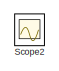
[diagram: root canvas - part 1/3, top left region]
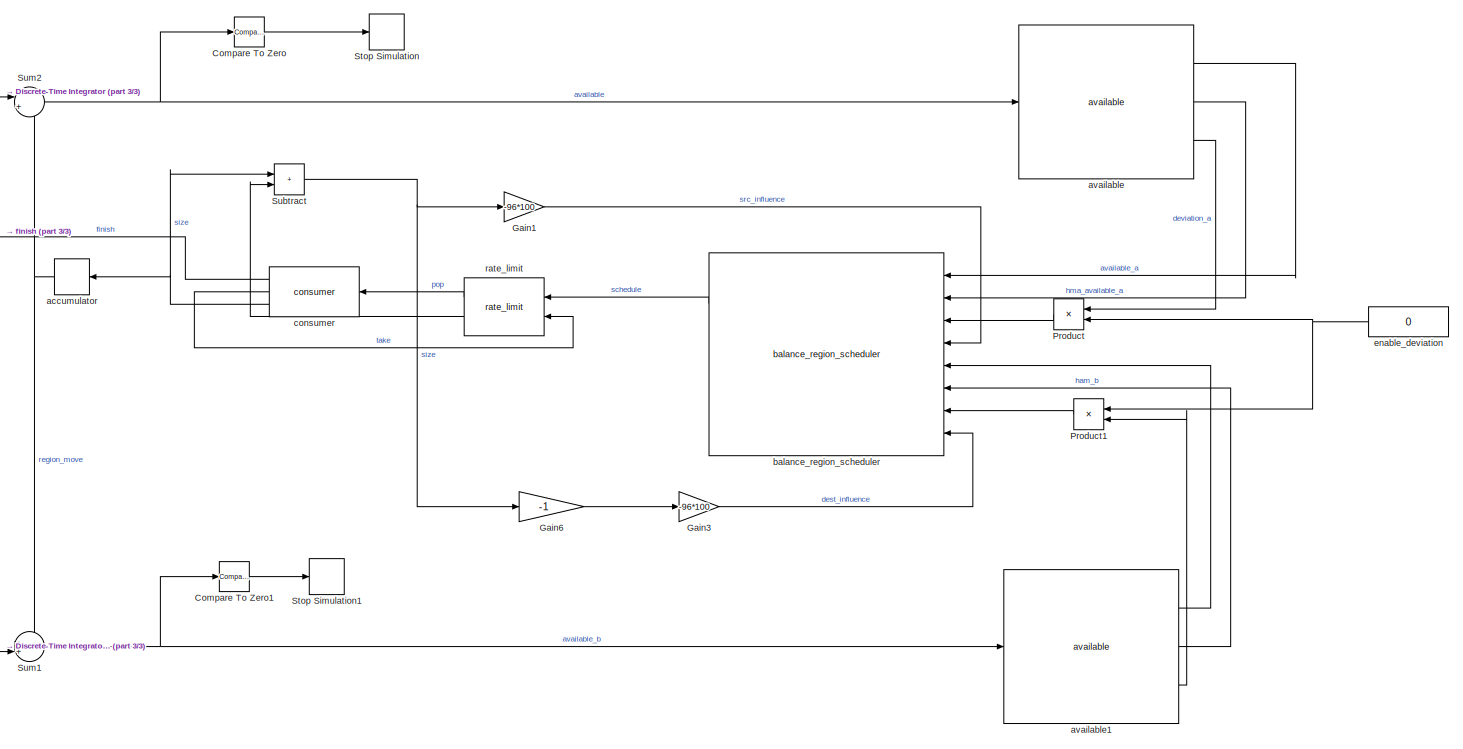
[diagram: root canvas - part 2/3, most of the canvas]
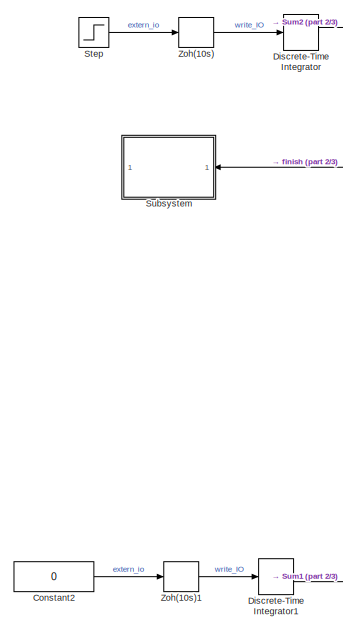
[diagram: root canvas - part 3/3, middle left region]
MODEL slx_dbddb1d050e6
KIND model
CONFIG AbsTol = auto
CONFIG EnableMultiTasking = off
CONFIG FixedStep = auto
CONFIG MaxStep = auto
CONFIG MinStep = auto
CONFIG RelTol = 1e-6
CONFIG SampleTimeConstraint = Unconstrained
CONFIG SolverName = FixedStepDiscrete
CONFIG StartTime = 0.0
CONFIG StopTime = 5000
WORKSPACE source: mxarray member
WORKSPACE Ts = 10
WORKSPACE a_amp = 1.1
WORKSPACE a_capacity = 100
WORKSPACE a_initial_available = 10
WORKSPACE b_amp = 1.1
WORKSPACE b_capacity = 100
WORKSPACE b_initial_available = 100
WORKSPACE consumer_size = 1000
WORKSPACE low_space_ratio = 0.8
WORKSPACE move = 0.004
WORKSPACE op_finish_duration = 60
WORKSPACE store_limit = 15
WORKSPACE write_qps = 0
BLOCK [Reference] Compare To Zero  REF=simulink/Logic and Bit
Operations/Compare
To Zero
  Ports = [1, 1]
  SourceBlock = simulink/Logic and Bit\nOperations/Compare\nTo Zero
  SourceProductBaseCode = SL
  SourceType = Compare To Zero
BLOCK [Reference] Compare To Zero1  REF=simulink/Logic and Bit
Operations/Compare
To Zero
  Ports = [1, 1]
  SourceBlock = simulink/Logic and Bit\nOperations/Compare\nTo Zero
  SourceProductBaseCode = SL
  SourceType = Compare To Zero
BLOCK [Constant] Constant2
  Value = 0
BLOCK [DiscreteIntegrator] Discrete-Time Integrator
  ICPrevOutput = DiscIntNeverNeededParam
  ICPrevScaledInput = DiscIntNeverNeededParam
  InitialCondition = a_initial_available
  InitialConditionSetting = Auto
  Ports = [1, 1]
  SampleTime = Ts
  gainval = 1
BLOCK [DiscreteIntegrator] Discrete-Time Integrator1
  ICPrevOutput = DiscIntNeverNeededParam
  ICPrevScaledInput = DiscIntNeverNeededParam
  InitialCondition = b_initial_available
  InitialConditionSetting = Auto
  Ports = [1, 1]
  SampleTime = Ts
  gainval = 1
BLOCK [Gain] Gain1
  Gain = -96*100
BLOCK [Gain] Gain3
  Gain = -96*100
BLOCK [Gain] Gain6
  Gain = -1
BLOCK [Product] Product
  NameLocation = top
  Ports = [2, 1]
BLOCK [Product] Product1
  NameLocation = top
  Ports = [2, 1]
BLOCK [Scope] Scope2
  Floating = off
  IOType = viewer
  NumInputPorts = 1
  Ports = []
  ScopeSpecificationString = Simulink.scopes.TimeScopeBlockCfg('CurrentConfiguration', extmgr.ConfigurationSet(extmgr.Configuration('Core','General UI',true),extmgr.Configuration('Core','Source UI',true),extmgr.Configuration('Sources','WiredSimulink',true,'DataLoggingVariableName','ScopeData2'),extmgr.Configuration('Visuals','Time Domain',true,'SerializedDisplays',{struct('MinYLimReal','-1.25','MaxYLimReal','1.25','YLabelReal...<+1371ch>
BLOCK [Step] Step
  After = write_qps
  SampleTime = 0
  Time = 40*60
BLOCK [Stop] Stop Simulation
BLOCK [Stop] Stop Simulation1
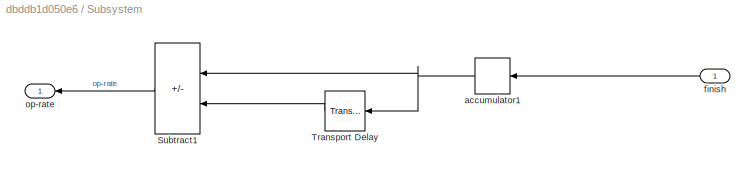
BLOCK [SubSystem] Subsystem
  NameLocation = top
  Ports = [1, 1]
  RequestExecContextInheritance = off
BLOCK [Sum] Subsystem/Subtract1
  IconShape = rectangular
  Inputs = +-
  NameLocation = top
  Ports = [2, 1]
BLOCK [TransportDelay] Subsystem/Transport Delay
  DelayTime = 60
  FixedBuffer = on
  NameLocation = top
  Ports = [1, 1]
BLOCK [DiscreteIntegrator] Subsystem/accumulator1
  ICPrevOutput = DiscIntNeverNeededParam
  ICPrevScaledInput = DiscIntNeverNeededParam
  InitialConditionSetting = Auto
  NameLocation = top
  Ports = [1, 1]
  SampleTime = -1
  gainval = Ts
BLOCK [Inport] Subsystem/finish
BLOCK [Outport] Subsystem/op-rate
BLOCK [Sum] Subtract
  IconShape = rectangular
  Ports = [2, 1]
BLOCK [Sum] Sum1
  Inputs = -+|
  Ports = [2, 1]
BLOCK [Sum] Sum2
  Inputs = |++
  Ports = [2, 1]
BLOCK [ZeroOrderHold] Zoh(10s)
  Description = Zoh(10s)
  SampleTime = Ts
BLOCK [ZeroOrderHold] Zoh(10s)1
  Description = Zoh(10s)
  SampleTime = Ts
BLOCK [DiscreteIntegrator] accumulator
  ICPrevOutput = DiscIntNeverNeededParam
  ICPrevScaledInput = DiscIntNeverNeededParam
  InitialConditionSetting = Auto
  NameLocation = top
  Ports = [1, 1]
  SampleTime = -1
  gainval = 96*10/(1024*a_amp*op_finish_duration)
BLOCK [Reference] available  REF=pingcap/available  (lib defined in slx_86c26b565c1c)
  Ports = [1, 3]
  SourceBlock = pingcap/available
BLOCK [Reference] available1  REF=pingcap/available  (lib defined in slx_86c26b565c1c)
  Ports = [1, 3]
  SourceBlock = pingcap/available
BLOCK [Reference] balance_region_scheduler   REF=pingcap/balance_region_scheduler   (lib defined in slx_86c26b565c1c)
  NameLocation = top
  Ports = [8, 3]
  SourceBlock = pingcap/balance_region_scheduler
BLOCK [Reference] consumer  REF=pingcap/consumer  (lib defined in slx_86c26b565c1c)
  NameLocation = top
  Ports = [1, 3]
  SourceBlock = pingcap/consumer
BLOCK [Constant] enable_deviation
  NameLocation = top
  Value = 0
BLOCK [Reference] rate_limit  REF=pingcap/rate_limit  (lib defined in slx_86c26b565c1c)
  NameLocation = top
  Ports = [2, 2]
  SourceBlock = pingcap/rate_limit
LINE Compare To Zero1:1 -> Stop Simulation1:1
LINE Compare To Zero:1 -> Stop Simulation:1
LINE Constant2:1 -> Zoh(10s)1:1
LINE Discrete-Time Integrator1:1 -> Sum1:2
LINE Discrete-Time Integrator:1 -> Sum2:1
LINE Gain1:1 -> balance_region_scheduler :4
LINE Gain3:1 -> balance_region_scheduler :8
LINE Gain6:1 -> Gain3:1
LINE Product1:1 -> balance_region_scheduler :7
LINE Product:1 -> balance_region_scheduler :3
LINE Step:1 -> Zoh(10s):1
LINE Subsystem/Subtract1:1 -> Subsystem/op-rate:1
LINE Subsystem/Transport Delay:1 -> Subsystem/Subtract1:2
NET Subsystem/accumulator1:1 -> Subsystem/Subtract1:1, Subsystem/Transport Delay:1
LINE Subsystem/finish:1 -> Subsystem/accumulator1:1
NET Subtract:1 -> Gain1:1, Gain6:1
NET Sum1:1 -> Compare To Zero1:1, available1:1
NET Sum2:1 -> Compare To Zero:1, available:1
LINE Zoh(10s)1:1 -> Discrete-Time Integrator1:1
LINE Zoh(10s):1 -> Discrete-Time Integrator:1
NET accumulator:1 -> Sum1:1, Sum2:2
LINE available1:1 -> balance_region_scheduler :5
LINE available1:2 -> balance_region_scheduler :6
LINE available1:3 -> Product1:2
LINE available:1 -> balance_region_scheduler :1
LINE available:2 -> balance_region_scheduler :2
LINE available:3 -> Product:1
LINE balance_region_scheduler :1 -> rate_limit:1
LINE consumer:1 -> Subsystem:1
LINE consumer:2 -> rate_limit:2
NET consumer:3 -> Subtract:1, accumulator:1
NET enable_deviation:1 -> Product1:1, Product:2
LINE rate_limit:1 -> consumer:1
LINE rate_limit:2 -> Subtract:2
note: NET lines group one-source signal fan-out (src -> all destinations, sorted); 1:1 wires keep LINE
